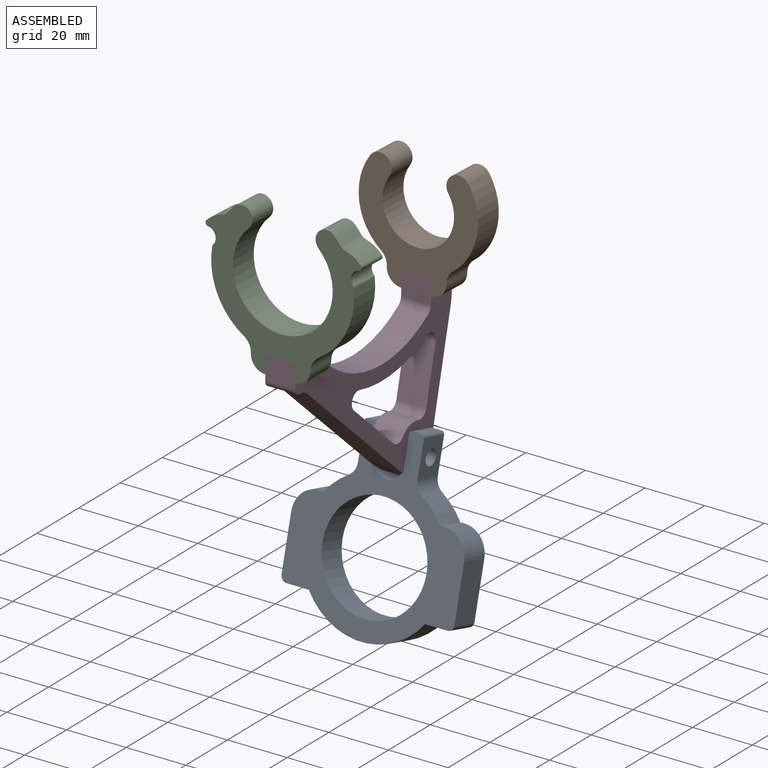
[diagram: assembled view]
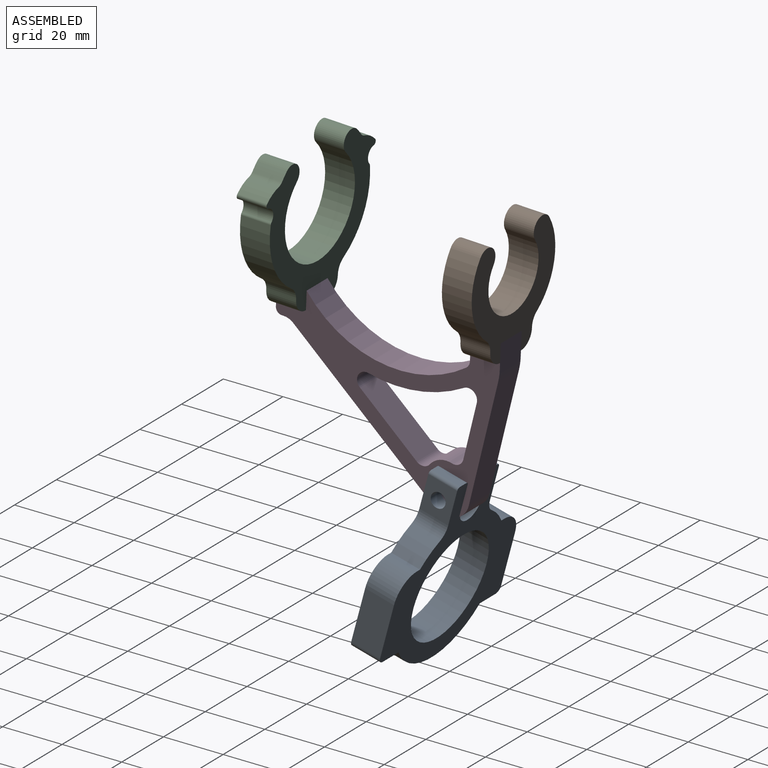
[diagram: assembled view, second angle]
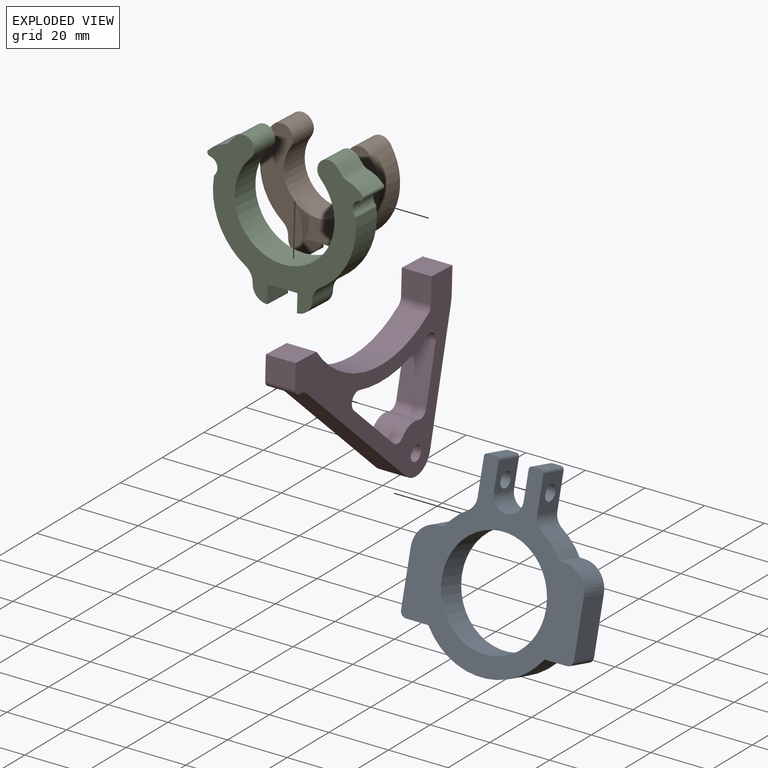
[diagram: exploded view]
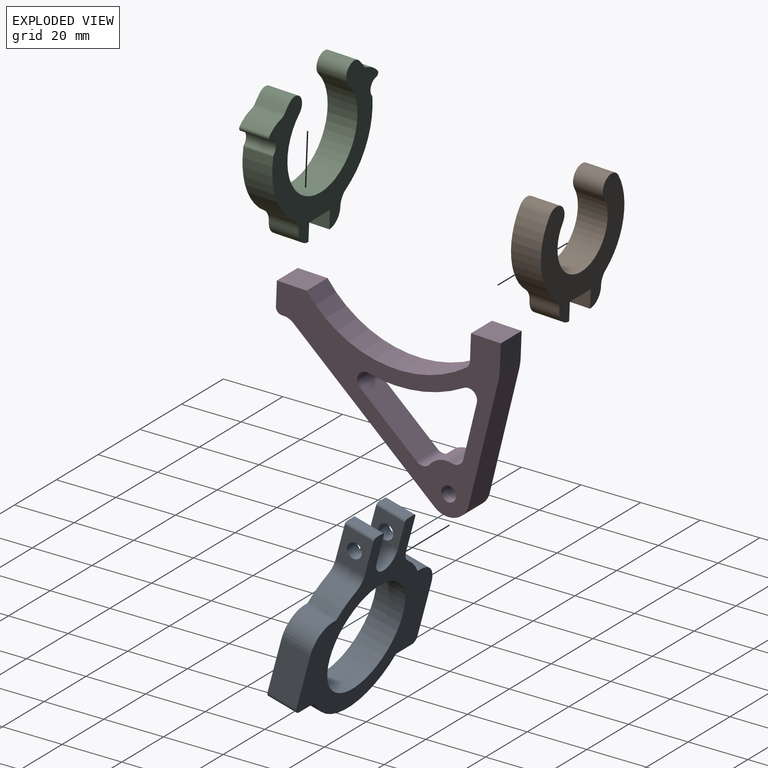
[diagram: exploded view, second angle]
ASSEMBLY  parts=4 mates=8
PART A: 31 faces, bbox 58x10x61.5 mm
  f0: cylinder r=5mm len=10mm, axis (0,1,0), area 157.1mm2, adj f1,f26,f27,f28
  f1: plane 10x9mm, normal (1,0,0), area 70.4mm2, adj f0,f2,f27,f28,f30
  f2: cylinder r=1mm len=10mm, axis (0,1,0), area 15.7mm2, adj f1,f3,f27,f28
  f3: plane 10x3mm, normal (0,0,1), area 30mm2, adj f2,f4,f27,f28
  f4: cylinder r=1mm len=10mm, axis (0,1,0), area 15.7mm2, adj f3,f5,f27,f28
  f5: plane 11.68x10mm, normal (-1,0,0), area 97.2mm2, adj f4,f6,f27,f28,f30
  f6: cylinder r=5mm len=10mm, axis (0,1,0), area 51.4mm2, adj f5,f7,f27,f28
  f7: cylinder r=24mm len=10mm, axis (0,1,0), area 97mm2, adj f6,f8,f27,f28
  f8: plane 10x1.51mm, normal (0,0,1), area 15.1mm2, adj f7,f9,f27,f28
  f9: cylinder r=8mm len=10mm, axis (0,1,0), area 125.7mm2, adj f8,f10,f27,f28
  f10: plane 18x10mm, normal (-1,0,0), area 180mm2, adj f9,f11,f27,f28
  f11: cylinder r=2mm len=10mm, axis (0,1,0), area 31.4mm2, adj f10,f12,f27,f28
  f12: plane 10x7.51mm, normal (0,0,-1), area 75.1mm2, adj f11,f13,f27,f28
  f13: cylinder r=24mm len=38.99mm, axis (0,1,0), area 455mm2, adj f12,f14,f27,f28
  f14: plane 10x7.51mm, normal (0,0,-1), area 75.1mm2, adj f13,f15,f27,f28
  f15: cylinder r=2mm len=10mm, axis (0,1,0), area 31.4mm2, adj f14,f16,f27,f28
  f16: plane 18x10mm, normal (1,0,0), area 180mm2, adj f15,f17,f27,f28
  f17: cylinder r=8mm len=10mm, axis (0,1,0), area 125.7mm2, adj f16,f18,f27,f28
  f18: plane 10x1.51mm, normal (0,0,1), area 15.1mm2, adj f17,f19,f27,f28
  f19: cylinder r=24mm len=10mm, axis (0,1,0), area 97mm2, adj f18,f20,f27,f28
  f20: cylinder r=5mm len=10mm, axis (0,1,0), area 51.4mm2, adj f19,f21,f27,f28
  f21: plane 11.68x10mm, normal (1,0,0), area 97.2mm2, adj f20,f22,f27,f28,f29
  f22: cylinder r=1mm len=10mm, axis (0,1,0), area 15.7mm2, adj f21,f23,f27,f28
  f23: plane 10x3mm, normal (0,0,1), area 30mm2, adj f22,f24,f27,f28
  f24: cylinder r=1mm len=10mm, axis (0,1,0), area 15.7mm2, adj f23,f26,f27,f28
  f25: cylinder r=17.5mm len=35mm, axis (0,1,0), area 1099.6mm2, adj f27,f28
  f26: plane 10x9mm, normal (-1,0,0), area 70.4mm2, adj f0,f24,f27,f28,f29
  f27: plane 61.5x58mm, normal (0,-1,0), area 1325.9mm2, adj f0,f1,f2,f3,f4,f5,f6,f7
  f28: plane 61.5x58mm, normal (0,1,0), area 1325.9mm2, adj f0,f1,f2,f3,f4,f5,f6,f7
  f29: cylinder r=2.5mm len=5mm, axis (1,0,0), area 78.5mm2, adj f21,f26
  f30: cylinder r=2.5mm len=5mm, axis (1,0,0), area 78.5mm2, adj f1,f5
PART B: 16 faces, bbox 40x10x38.3 mm
  f0: plane 10x10mm, normal (0,0,-1), area 100mm2, adj f1,f9,f10,f11
  f1: plane 10x6mm, normal (-1,0,0), area 60mm2, adj f0,f10,f11,f12
  f2: plane 10x0.25mm, normal (1,0,0), area 2.5mm2, adj f10,f11,f12,f13
  f3: cylinder r=20mm len=27.34mm, axis (0,1,0), area 306mm2, adj f4,f10,f11,f13
  f4: cylinder r=4mm len=10mm, axis (0,1,0), area 125.7mm2, adj f3,f5,f10,f11
  f5: cylinder r=12mm len=24mm, axis (0,1,0), area 521.6mm2, adj f4,f6,f10,f11
  f6: cylinder r=4mm len=10mm, axis (0,1,0), area 125.7mm2, adj f5,f7,f10,f11
  f7: cylinder r=20mm len=27.34mm, axis (0,1,0), area 306mm2, adj f6,f10,f11,f14
  f8: plane 10x0.25mm, normal (-1,0,0), area 2.5mm2, adj f10,f11,f14,f15
  f9: plane 10x6mm, normal (1,0,0), area 60mm2, adj f0,f10,f11,f15
  f10: plane 40x38.32mm, normal (0,-1,0), area 660.4mm2, adj f0,f1,f2,f3,f4,f5,f6,f7
  f11: plane 40x38.32mm, normal (0,1,0), area 660.4mm2, adj f0,f1,f2,f3,f4,f5,f6,f7
  f12: cylinder r=5mm len=10mm, axis (0,1,0), area 78.5mm2, adj f1,f2,f10,f11
  f13: cylinder r=5mm len=10mm, axis (0,1,0), area 46.4mm2, adj f2,f3,f10,f11
  f14: cylinder r=5mm len=10mm, axis (0,1,0), area 46.4mm2, adj f7,f8,f10,f11
  f15: cylinder r=5mm len=10mm, axis (0,1,0), area 78.5mm2, adj f8,f9,f10,f11
PART C: 28 faces, bbox 52.3x10x48.2 mm
  f0: plane 10x0.07mm, normal (-1,0,0), area 0.7mm2, adj f18,f19,f24,f27
  f1: plane 10x6mm, normal (1,0,0), area 60mm2, adj f2,f18,f19,f24
  f2: plane 10x10mm, normal (0,0,-1), area 100mm2, adj f1,f3,f18,f19
  f3: plane 10x6mm, normal (-1,0,0), area 60mm2, adj f2,f18,f19,f25
  f4: plane 10x0.07mm, normal (1,0,0), area 0.7mm2, adj f18,f19,f25,f26
  f5: cylinder r=24mm len=23.83mm, axis (0,1,0), area 279.1mm2, adj f18,f19,f20,f26
  f6: cylinder r=3mm len=10mm, axis (0,1,0), area 66mm2, adj f18,f19,f20,f21
  f7: cylinder r=11.27mm len=10mm, axis (0,1,0), area 63mm2, adj f8,f18,f19,f21
  f8: cylinder r=3mm len=10mm, axis (0,1,0), area 19.8mm2, adj f7,f9,f18,f19
  f9: cylinder r=24mm len=10mm, axis (0,1,0), area 32.2mm2, adj f8,f10,f18,f19
  f10: cylinder r=3.62mm len=10mm, axis (0,1,0), area 113.9mm2, adj f9,f11,f18,f19
  f11: cylinder r=16.75mm len=33.5mm, axis (0,1,0), area 793.8mm2, adj f10,f12,f18,f19
  f12: cylinder r=3.62mm len=10mm, axis (0,1,0), area 113.9mm2, adj f11,f13,f18,f19
  f13: cylinder r=24mm len=10mm, axis (0,1,0), area 32.2mm2, adj f12,f14,f18,f19
  f14: cylinder r=3mm len=10mm, axis (0,1,0), area 19.8mm2, adj f13,f15,f18,f19
  f15: cylinder r=11.27mm len=10mm, axis (0,1,0), area 63mm2, adj f14,f18,f19,f22
  f16: cylinder r=3mm len=10mm, axis (0,1,0), area 66mm2, adj f18,f19,f22,f23
  f17: cylinder r=24mm len=23.83mm, axis (0,1,0), area 279.1mm2, adj f18,f19,f23,f27
  f18: plane 52.34x48.22mm, normal (0,-1,0), area 842.5mm2, adj f0,f1,f2,f3,f4,f5,f6,f7
  f19: plane 52.34x48.22mm, normal (0,1,0), area 842.5mm2, adj f0,f1,f2,f3,f4,f5,f6,f7
  f20: cylinder r=1mm len=10mm, axis (0,-1,0), area 6.2mm2, adj f5,f6,f18,f19
  f21: cylinder r=1mm len=10mm, axis (0,-1,0), area 22.1mm2, adj f6,f7,f18,f19
  f22: cylinder r=1mm len=10mm, axis (0,-1,0), area 22.1mm2, adj f15,f16,f18,f19
  f23: cylinder r=1mm len=10mm, axis (0,-1,0), area 6.2mm2, adj f16,f17,f18,f19
  f24: cylinder r=5mm len=10mm, axis (0,-1,0), area 78.5mm2, adj f0,f1,f18,f19
  f25: cylinder r=5mm len=10mm, axis (0,-1,0), area 78.5mm2, adj f3,f4,f18,f19
  f26: cylinder r=5.2mm len=10mm, axis (0,1,0), area 53.2mm2, adj f4,f5,f18,f19
  f27: cylinder r=5.2mm len=10mm, axis (0,1,0), area 53.2mm2, adj f0,f17,f18,f19
PART D: 25 faces, bbox 75x10x58 mm
  f0: cylinder r=3mm len=10mm, axis (0,1,0), area 48.8mm2, adj f1,f22,f23,f24
  f1: cylinder r=7mm len=10mm, axis (0,1,0), area 82.9mm2, adj f0,f2,f23,f24
  f2: cylinder r=3mm len=10mm, axis (0,1,0), area 48.8mm2, adj f1,f3,f23,f24
  f3: plane 18.62x10mm, normal (0.98,0,0.2), area 190mm2, adj f2,f4,f23,f24
  f4: cylinder r=3mm len=10mm, axis (0,1,0), area 69.4mm2, adj f3,f5,f23,f24
  f5: cylinder r=44.19mm len=32.19mm, axis (0,1,0), area 334.2mm2, adj f4,f6,f23,f24
  f6: cylinder r=3mm len=10mm, axis (0,1,0), area 76.6mm2, adj f5,f22,f23,f24
  f7: cylinder r=7mm len=11.5mm, axis (0,1,0), area 146.6mm2, adj f8,f21,f23,f24
  f8: plane 48.95x41.07mm, normal (0.64,0,-0.77), area 638.9mm2, adj f7,f9,f23,f24
  f9: cylinder r=5mm len=10mm, axis (0,1,0), area 34.9mm2, adj f8,f10,f23,f24
  f10: plane 10x0.73mm, normal (0,0,-1), area 7.3mm2, adj f9,f11,f23,f24
  f11: cylinder r=2mm len=10mm, axis (0,1,0), area 31.4mm2, adj f10,f12,f23,f24
  f12: plane 10x8mm, normal (1,0,0), area 80mm2, adj f11,f13,f23,f24
  f13: plane 10x10mm, normal (0,0,1), area 100mm2, adj f12,f14,f23,f24
  f14: cylinder r=39.19mm len=53.79mm, axis (0,1,0), area 599mm2, adj f13,f15,f23,f24
  f15: cylinder r=3mm len=10mm, axis (0,1,0), area 28mm2, adj f14,f16,f23,f24
  f16: plane 10x8.52mm, normal (1,0,0), area 85.2mm2, adj f15,f17,f23,f24
  f17: plane 10x10mm, normal (0,0,1), area 100mm2, adj f16,f18,f23,f24
  f18: plane 10x7.99mm, normal (-1,0,0), area 79.9mm2, adj f17,f19,f23,f24
  f19: cylinder r=20mm len=10mm, axis (0,1,0), area 40.1mm2, adj f18,f21,f23,f24
  f20: cylinder r=2.5mm len=10mm, axis (0,1,0), area 157.1mm2, adj f23,f24
  f21: plane 40.42x10mm, normal (-0.98,0,-0.2), area 412.5mm2, adj f7,f19,f23,f24
  f22: plane 19.75x16.57mm, normal (-0.64,0,0.77), area 257.8mm2, adj f0,f6,f23,f24
  f23: plane 75.01x58mm, normal (0,-1,0), area 1229.6mm2, adj f0,f1,f2,f3,f4,f5,f6,f7
  f24: plane 75.01x58mm, normal (0,1,0), area 1229.6mm2, adj f0,f1,f2,f3,f4,f5,f6,f7
PLACE A rot(axis=(-1,0,0),15deg) t=(0,0.07,-1.83)mm fixed
PLACE B rot(axis=(-1,0,0),2.3deg) t=(0,21.4,98.5)mm
PLACE C rot(axis=(-1,0,0),2.3deg) t=(0,-43.53,101.84)mm
PLACE D rot(axis=(-0.02,-0.02,-1),90deg) t=(5,3.13,28.92)mm
MATE planar C.f2 <-> D.f13  axis (0,-0.04,-1) through (0,-49.48,78.06)mm
MATE cylindrical D.f7 <-> A.f29  axis (-1,0,0) through (-5,3.13,28.92)mm
MATE planar B.f9 <-> D.f23  axis (1,0,0) through (-5,15.52,76.46)mm
MATE planar D.f24 <-> C.f3  axis (1,0,0) through (5,-11.54,54.96)mm
MATE planar B.f11 <-> D.f18  axis (0,1,-0.04) through (-5,20.63,79.26)mm
MATE planar D.f23 <-> A.f1  axis (-1,0,0) through (-5,15.64,79.46)mm
MATE planar C.f18 <-> D.f12  axis (0,-1,0.04) through (-12.49,-54.34,81.76)mm
MATE planar D.f17 <-> B.f0  axis (0,0.04,1) through (0,10.64,79.66)mm
